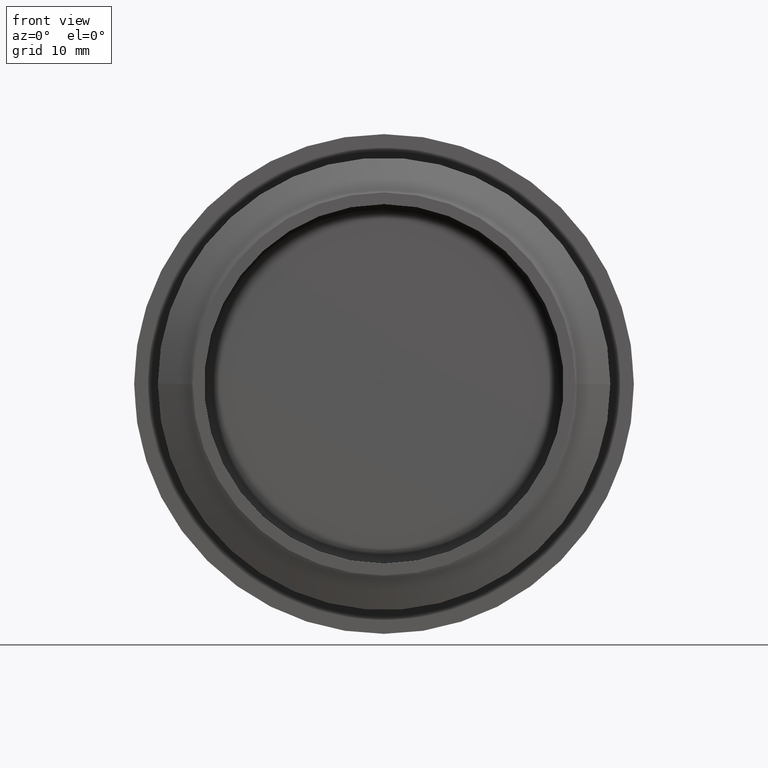
[diagram: clean part render]
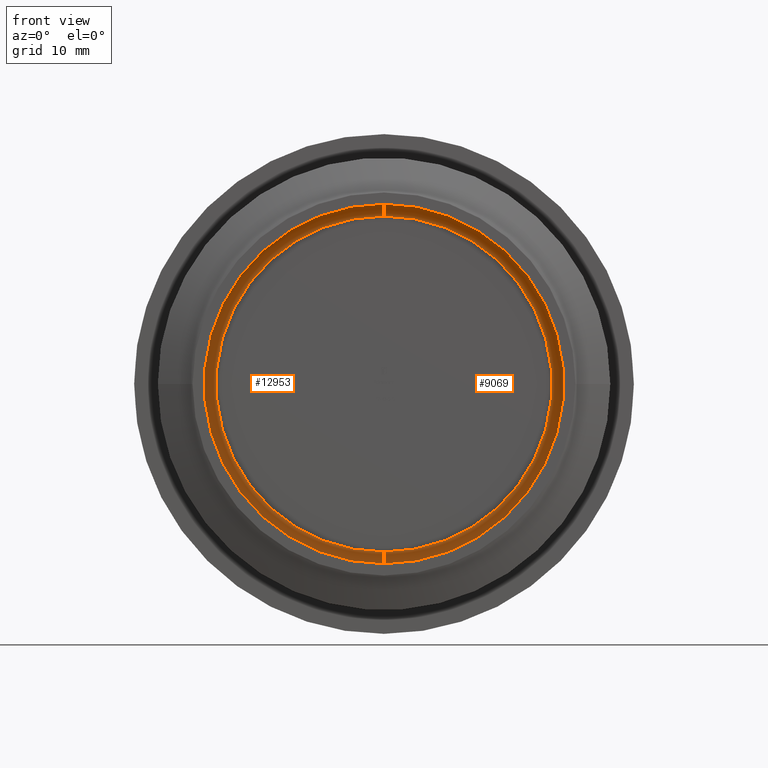
[diagram: same view with one multi-face feature highlighted, each face labeled with its STEP entity id]
A machine part, front view. The highlighted faces form ONE feature: a constant-radius fillet chain: 2 tangent blend faces with common blend radius 1 mm. The faces share edges in the B-rep.
Their STEP definitions:
[1] entity #12953 (Torus):
#281 = CARTESIAN_POINT ( 'NONE',  ( 0.000000000000000000, 9.999999999999998224, -14.24999999999999822 ) ) ;
#285 = DIRECTION ( 'NONE',  ( 0.000000000000000000, 0.000000000000000000, -1.000000000000000000 ) ) ;
#1310 = AXIS2_PLACEMENT_3D ( 'NONE', #281, #7837, #8854 ) ;
#1423 = DIRECTION ( 'NONE',  ( 0.000000000000000000, 0.000000000000000000, -1.000000000000000000 ) ) ;
#1496 = ORIENTED_EDGE ( 'NONE', *, *, #6716, .F. ) ;
#1643 = CARTESIAN_POINT ( 'NONE',  ( 0.000000000000000000, 9.999999999999998224, 0.000000000000000000 ) ) ;
#1791 = CARTESIAN_POINT ( 'NONE',  ( 0.000000000000000000, 11.00000000000000000, -14.24999999999999822 ) ) ;
#2141 = ORIENTED_EDGE ( 'NONE', *, *, #3360, .T. ) ;
#2530 = CARTESIAN_POINT ( 'NONE',  ( 1.745121688784978228E-15, 9.999999999999998224, 14.24999999999999822 ) ) ;
#2565 = DIRECTION ( 'NONE',  ( 1.000000000000000000, 0.000000000000000000, -1.224646799147353207E-16 ) ) ;
#2941 = AXIS2_PLACEMENT_3D ( 'NONE', #8792, #6692, #1423 ) ;
#3360 = EDGE_CURVE ( 'NONE', #4315, #5947, #12708, .T. ) ;
#3465 = TOROIDAL_SURFACE ( 'NONE', #9715, 14.24999999999999822, 1.000000000000000000 ) ;
#4151 = CARTESIAN_POINT ( 'NONE',  ( 1.867586368699713770E-15, 9.999999999999998224, 15.25000000000000000 ) ) ;
#4315 = VERTEX_POINT ( 'NONE', #11043 ) ;
#4465 = CARTESIAN_POINT ( 'NONE',  ( 0.000000000000000000, 9.999999999999998224, 0.000000000000000000 ) ) ;
#4965 = EDGE_CURVE ( 'NONE', #12089, #5947, #7180, .T. ) ;
#5469 = AXIS2_PLACEMENT_3D ( 'NONE', #4465, #13011, #285 ) ;
#5514 = EDGE_LOOP ( 'NONE', ( #1496, #2141, #10782, #9328 ) ) ;
#5925 = AXIS2_PLACEMENT_3D ( 'NONE', #2530, #2565, #10122 ) ;
#5947 = VERTEX_POINT ( 'NONE', #4151 ) ;
#6692 = DIRECTION ( 'NONE',  ( -0.000000000000000000, -1.000000000000000000, -0.000000000000000000 ) ) ;
#6716 = EDGE_CURVE ( 'NONE', #4315, #9054, #11471, .T. ) ;
#7180 = CIRCLE ( 'NONE', #5469, 15.25000000000000000 ) ;
#7837 = DIRECTION ( 'NONE',  ( -1.000000000000000000, 0.000000000000000000, 0.000000000000000000 ) ) ;
#8792 = CARTESIAN_POINT ( 'NONE',  ( 0.000000000000000000, 11.00000000000000000, 0.000000000000000000 ) ) ;
#8801 = EDGE_CURVE ( 'NONE', #9054, #12089, #11217, .T. ) ;
#8854 = DIRECTION ( 'NONE',  ( 0.000000000000000000, 0.000000000000000000, 1.000000000000000000 ) ) ;
#9027 = DIRECTION ( 'NONE',  ( -0.000000000000000000, -1.000000000000000000, -0.000000000000000000 ) ) ;
#9054 = VERTEX_POINT ( 'NONE', #1791 ) ;
#9328 = ORIENTED_EDGE ( 'NONE', *, *, #8801, .F. ) ;
#9715 = AXIS2_PLACEMENT_3D ( 'NONE', #1643, #9027, #10069 ) ;
#10069 = DIRECTION ( 'NONE',  ( 0.000000000000000000, 0.000000000000000000, -1.000000000000000000 ) ) ;
#10122 = DIRECTION ( 'NONE',  ( -1.224646799147351482E-16, 0.000000000000000000, -1.000000000000000000 ) ) ;
#10782 = ORIENTED_EDGE ( 'NONE', *, *, #4965, .F. ) ;
#10814 = CARTESIAN_POINT ( 'NONE',  ( 0.000000000000000000, 9.999999999999998224, -15.25000000000000000 ) ) ;
#11043 = CARTESIAN_POINT ( 'NONE',  ( 1.806354028742345802E-15, 11.00000000000000000, 14.24999999999999822 ) ) ;
#11217 = CIRCLE ( 'NONE', #1310, 1.000000000000000888 ) ;
#11471 = CIRCLE ( 'NONE', #2941, 14.24999999999999822 ) ;
#12089 = VERTEX_POINT ( 'NONE', #10814 ) ;
#12138 = FACE_OUTER_BOUND ( 'NONE', #5514, .T. ) ;
#12708 = CIRCLE ( 'NONE', #5925, 1.000000000000000888 ) ;
#12953 = ADVANCED_FACE ( 'NONE', ( #12138 ), #3465, .F. ) ;
#13011 = DIRECTION ( 'NONE',  ( 0.000000000000000000, 1.000000000000000000, 0.000000000000000000 ) ) ;
[2] entity #9069 (Torus):
#281 = CARTESIAN_POINT ( 'NONE',  ( 0.000000000000000000, 9.999999999999998224, -14.24999999999999822 ) ) ;
#422 = DIRECTION ( 'NONE',  ( 0.000000000000000000, 0.000000000000000000, -1.000000000000000000 ) ) ;
#1310 = AXIS2_PLACEMENT_3D ( 'NONE', #281, #7837, #8854 ) ;
#1701 = DIRECTION ( 'NONE',  ( 0.000000000000000000, 0.000000000000000000, -1.000000000000000000 ) ) ;
#1791 = CARTESIAN_POINT ( 'NONE',  ( 0.000000000000000000, 11.00000000000000000, -14.24999999999999822 ) ) ;
#2294 = CIRCLE ( 'NONE', #4585, 15.25000000000000000 ) ;
#2530 = CARTESIAN_POINT ( 'NONE',  ( 1.745121688784978228E-15, 9.999999999999998224, 14.24999999999999822 ) ) ;
#2565 = DIRECTION ( 'NONE',  ( 1.000000000000000000, 0.000000000000000000, -1.224646799147353207E-16 ) ) ;
#3340 = ORIENTED_EDGE ( 'NONE', *, *, #9812, .F. ) ;
#3360 = EDGE_CURVE ( 'NONE', #4315, #5947, #12708, .T. ) ;
#3433 = EDGE_LOOP ( 'NONE', ( #4904, #3340, #7962, #13423 ) ) ;
#4074 = DIRECTION ( 'NONE',  ( 0.000000000000000000, 0.000000000000000000, -1.000000000000000000 ) ) ;
#4126 = DIRECTION ( 'NONE',  ( -0.000000000000000000, -1.000000000000000000, -0.000000000000000000 ) ) ;
#4151 = CARTESIAN_POINT ( 'NONE',  ( 1.867586368699713770E-15, 9.999999999999998224, 15.25000000000000000 ) ) ;
#4315 = VERTEX_POINT ( 'NONE', #11043 ) ;
#4585 = AXIS2_PLACEMENT_3D ( 'NONE', #10096, #8912, #422 ) ;
#4904 = ORIENTED_EDGE ( 'NONE', *, *, #3360, .F. ) ;
#4920 = CARTESIAN_POINT ( 'NONE',  ( 0.000000000000000000, 9.999999999999998224, 0.000000000000000000 ) ) ;
#5925 = AXIS2_PLACEMENT_3D ( 'NONE', #2530, #2565, #10122 ) ;
#5947 = VERTEX_POINT ( 'NONE', #4151 ) ;
#7533 = EDGE_CURVE ( 'NONE', #5947, #12089, #2294, .T. ) ;
#7837 = DIRECTION ( 'NONE',  ( -1.000000000000000000, 0.000000000000000000, 0.000000000000000000 ) ) ;
#7962 = ORIENTED_EDGE ( 'NONE', *, *, #8801, .T. ) ;
#8102 = DIRECTION ( 'NONE',  ( -0.000000000000000000, -1.000000000000000000, -0.000000000000000000 ) ) ;
#8223 = CIRCLE ( 'NONE', #13563, 14.24999999999999822 ) ;
#8391 = TOROIDAL_SURFACE ( 'NONE', #12336, 14.24999999999999822, 1.000000000000000000 ) ;
#8801 = EDGE_CURVE ( 'NONE', #9054, #12089, #11217, .T. ) ;
#8854 = DIRECTION ( 'NONE',  ( 0.000000000000000000, 0.000000000000000000, 1.000000000000000000 ) ) ;
#8912 = DIRECTION ( 'NONE',  ( 0.000000000000000000, 1.000000000000000000, 0.000000000000000000 ) ) ;
#9054 = VERTEX_POINT ( 'NONE', #1791 ) ;
#9069 = ADVANCED_FACE ( 'NONE', ( #10202 ), #8391, .F. ) ;
#9361 = CARTESIAN_POINT ( 'NONE',  ( 0.000000000000000000, 11.00000000000000000, 0.000000000000000000 ) ) ;
#9812 = EDGE_CURVE ( 'NONE', #9054, #4315, #8223, .T. ) ;
#10096 = CARTESIAN_POINT ( 'NONE',  ( 0.000000000000000000, 9.999999999999998224, 0.000000000000000000 ) ) ;
#10122 = DIRECTION ( 'NONE',  ( -1.224646799147351482E-16, 0.000000000000000000, -1.000000000000000000 ) ) ;
#10202 = FACE_OUTER_BOUND ( 'NONE', #3433, .T. ) ;
#10814 = CARTESIAN_POINT ( 'NONE',  ( 0.000000000000000000, 9.999999999999998224, -15.25000000000000000 ) ) ;
#11043 = CARTESIAN_POINT ( 'NONE',  ( 1.806354028742345802E-15, 11.00000000000000000, 14.24999999999999822 ) ) ;
#11217 = CIRCLE ( 'NONE', #1310, 1.000000000000000888 ) ;
#12089 = VERTEX_POINT ( 'NONE', #10814 ) ;
#12336 = AXIS2_PLACEMENT_3D ( 'NONE', #4920, #8102, #1701 ) ;
#12708 = CIRCLE ( 'NONE', #5925, 1.000000000000000888 ) ;
#13423 = ORIENTED_EDGE ( 'NONE', *, *, #7533, .F. ) ;
#13563 = AXIS2_PLACEMENT_3D ( 'NONE', #9361, #4126, #4074 ) ;